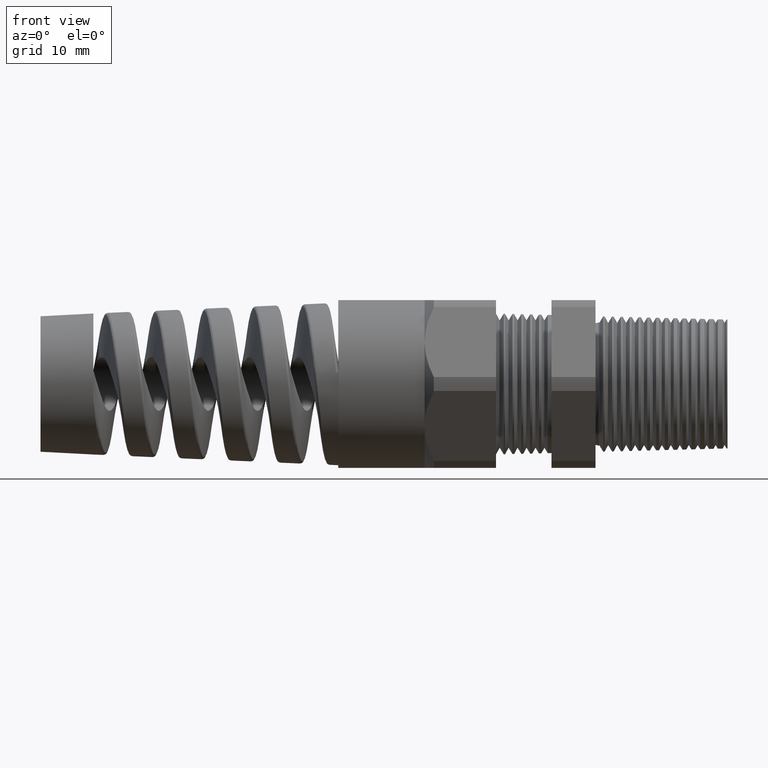
[diagram: clean part render]
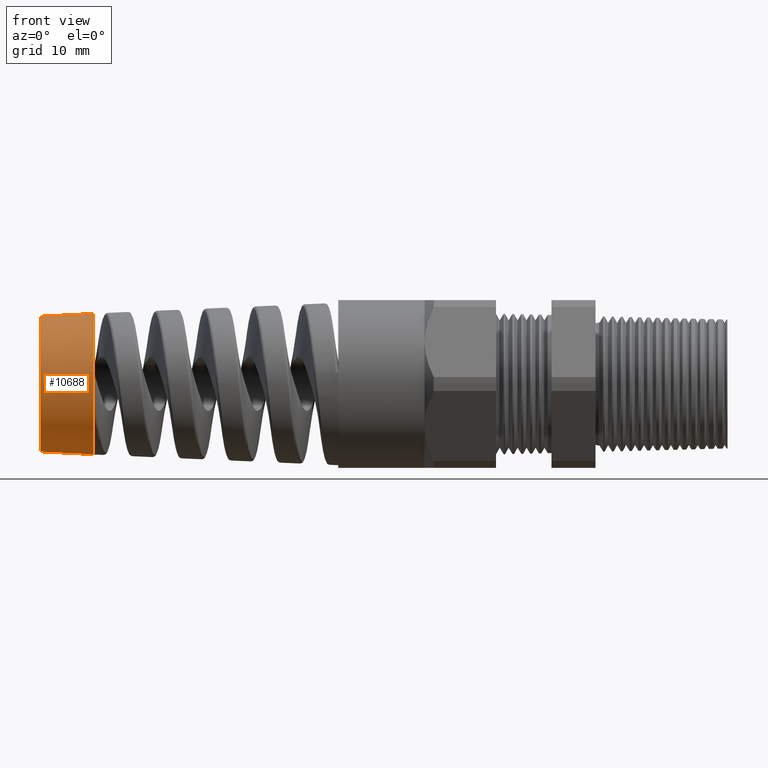
[diagram: same view with one face highlighted and labeled with its STEP entity id]
A machine part, front view. The second image highlights one B-rep face of the part: STEP entity #10688.
In plain terms, the highlighted conical surface has half-angle 3 deg.
Its self-contained STEP definition (entity closure, byte-faithful):
#152 = ORIENTED_EDGE ( 'NONE', *, *, #153, .T. ) ;
#153 = EDGE_CURVE ( 'NONE', #4530, #10901, #1369, .T. ) ;
#154 = ORIENTED_EDGE ( 'NONE', *, *, #4532, .F. ) ;
#155 = ORIENTED_EDGE ( 'NONE', *, *, #156, .T. ) ;
#156 = EDGE_CURVE ( 'NONE', #10644, #912, #1370, .T. ) ;
#912 = VERTEX_POINT ( 'NONE', #3151 ) ;
#1327 = CARTESIAN_POINT ( 'NONE',  ( -2.553780000000000200, 0.0000000000000000000, 0.0000000000000000000 ) ) ;
#1363 = DIRECTION ( 'NONE',  ( 0.9986295347545738300, -6.409306129323724800E-018, -0.05233595624294395300 ) ) ;
#1364 = VECTOR ( 'NONE', #1363, 39.37007874015748900 ) ;
#1365 = CARTESIAN_POINT ( 'NONE',  ( -2.553780000000000200, -3.857875854218868700E-017, -0.3150194698508069800 ) ) ;
#1366 = DIRECTION ( 'NONE',  ( 0.0000000000000000000, 0.0000000000000000000, 1.000000000000000000 ) ) ;
#1367 = DIRECTION ( 'NONE',  ( -1.000000000000000000, 0.0000000000000000000, 0.0000000000000000000 ) ) ;
#1368 = AXIS2_PLACEMENT_3D ( 'NONE', #1327, #1367, #1366 ) ;
#1369 = CIRCLE ( 'NONE', #1368, 0.3150194698508069800 ) ;
#1370 = LINE ( 'NONE', #1365, #1364 ) ;
#3151 = CARTESIAN_POINT ( 'NONE',  ( -2.553780000000000200, -3.857875854218868700E-017, -0.3150194698508069800 ) ) ;
#4094 = CARTESIAN_POINT ( 'NONE',  ( -2.553780000000000200, -0.3040296717231083000, -0.08248166521732255800 ) ) ;
#4140 = DIRECTION ( 'NONE',  ( 0.0000000000000000000, 0.0000000000000000000, -1.000000000000000000 ) ) ;
#4141 = DIRECTION ( 'NONE',  ( 1.000000000000000000, 0.0000000000000000000, 0.0000000000000000000 ) ) ;
#4142 = CARTESIAN_POINT ( 'NONE',  ( -2.553780000000000200, 0.0000000000000000000, 0.0000000000000000000 ) ) ;
#4143 = AXIS2_PLACEMENT_3D ( 'NONE', #4142, #4141, #4140 ) ;
#4170 = CIRCLE ( 'NONE', #4143, 0.3150194698511438200 ) ;
#4530 = VERTEX_POINT ( 'NONE', #4094 ) ;
#4532 = EDGE_CURVE ( 'NONE', #4530, #912, #4170, .T. ) ;
#5084 = DIRECTION ( 'NONE',  ( 0.0000000000000000000, 0.0000000000000000000, 1.000000000000000000 ) ) ;
#5085 = DIRECTION ( 'NONE',  ( 1.000000000000000000, 0.0000000000000000000, 0.0000000000000000000 ) ) ;
#5086 = CARTESIAN_POINT ( 'NONE',  ( -2.553780000000000200, 0.0000000000000000000, 0.0000000000000000000 ) ) ;
#5087 = AXIS2_PLACEMENT_3D ( 'NONE', #5086, #5085, #5084 ) ;
#5089 = CONICAL_SURFACE ( 'NONE', #5087, 0.3150194698508069800, 0.05235987755983000100 ) ;
#5094 = FACE_OUTER_BOUND ( 'NONE', #10666, .T. ) ;
#5097 = DIRECTION ( 'NONE',  ( 0.0000000000000000000, 0.0000000000000000000, 1.000000000000000000 ) ) ;
#5098 = DIRECTION ( 'NONE',  ( -1.000000000000000000, 0.0000000000000000000, 0.0000000000000000000 ) ) ;
#5099 = CARTESIAN_POINT ( 'NONE',  ( -2.790000472440945100, 0.0000000000000000000, 0.0000000000000000000 ) ) ;
#5100 = AXIS2_PLACEMENT_3D ( 'NONE', #5099, #5098, #5097 ) ;
#5101 = CIRCLE ( 'NONE', #5100, 0.3026396794689861800 ) ;
#5150 = CARTESIAN_POINT ( 'NONE',  ( -2.790000472440945100, 0.0000000000000000000, 0.3026396794689861800 ) ) ;
#5152 = CARTESIAN_POINT ( 'NONE',  ( -2.790000472440945100, -3.782071500892808600E-017, -0.3026396794689861800 ) ) ;
#7321 = DIRECTION ( 'NONE',  ( 0.9986295347545738300, 0.0000000000000000000, 0.05233595624294395300 ) ) ;
#7322 = VECTOR ( 'NONE', #7321, 39.37007874015748900 ) ;
#7323 = CARTESIAN_POINT ( 'NONE',  ( -2.553780000000000200, 0.0000000000000000000, 0.3150194698508069800 ) ) ;
#7325 = LINE ( 'NONE', #7323, #7322 ) ;
#7339 = CARTESIAN_POINT ( 'NONE',  ( -2.553780000000000200, 0.0000000000000000000, 0.3150194698508069800 ) ) ;
#10644 = VERTEX_POINT ( 'NONE', #5152 ) ;
#10646 = VERTEX_POINT ( 'NONE', #5150 ) ;
#10666 = EDGE_LOOP ( 'NONE', ( #10682, #155, #154, #152, #10907 ) ) ;
#10682 = ORIENTED_EDGE ( 'NONE', *, *, #10683, .F. ) ;
#10683 = EDGE_CURVE ( 'NONE', #10644, #10646, #5101, .T. ) ;
#10688 = ADVANCED_FACE ( 'NONE', ( #5094 ), #5089, .T. ) ;
#10901 = VERTEX_POINT ( 'NONE', #7339 ) ;
#10907 = ORIENTED_EDGE ( 'NONE', *, *, #10908, .F. ) ;
#10908 = EDGE_CURVE ( 'NONE', #10646, #10901, #7325, .T. ) ;